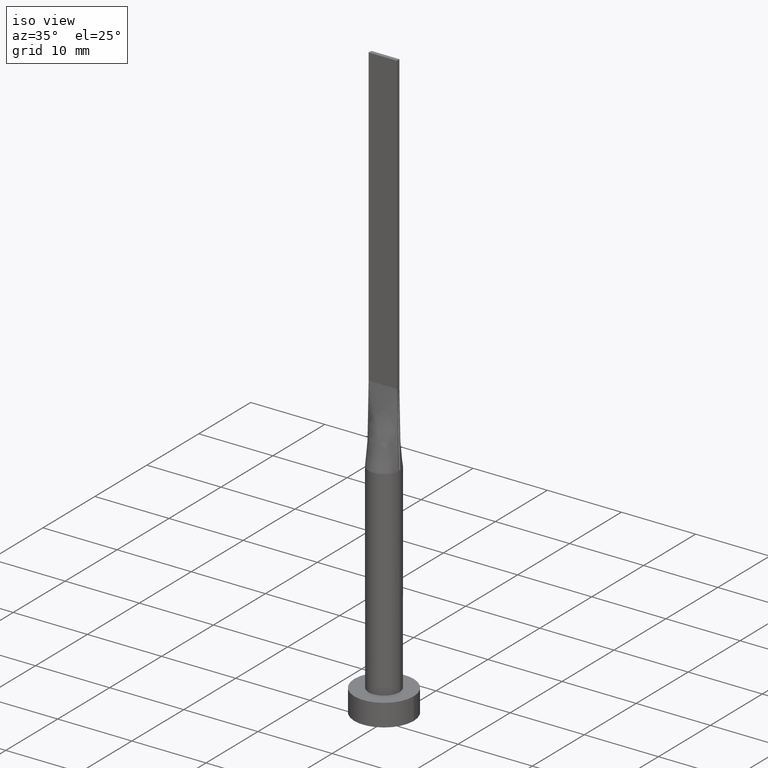
[diagram: clean part render]
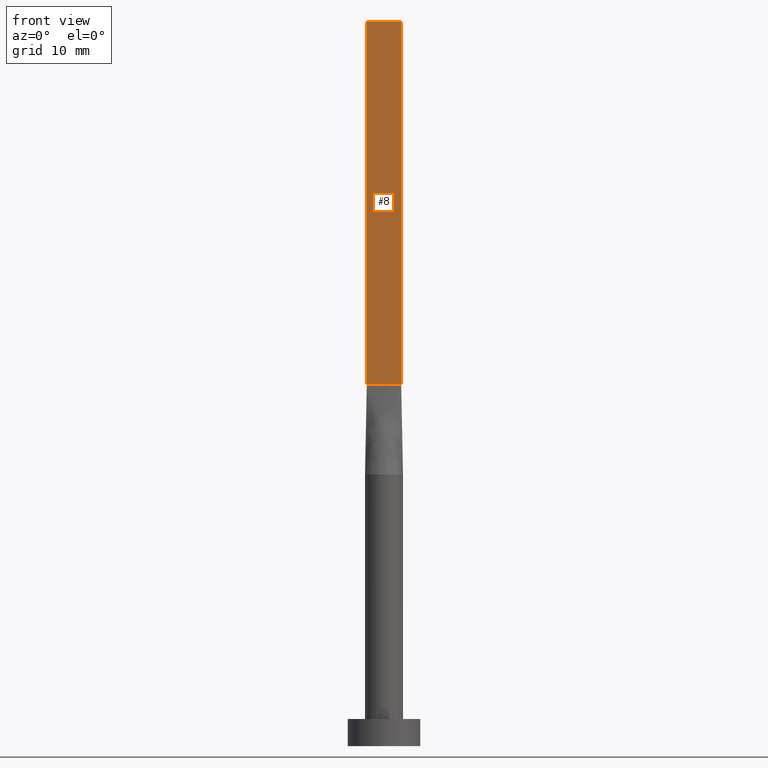
[diagram: tour spotlight — one face highlighted and labeled with its STEP entity id]
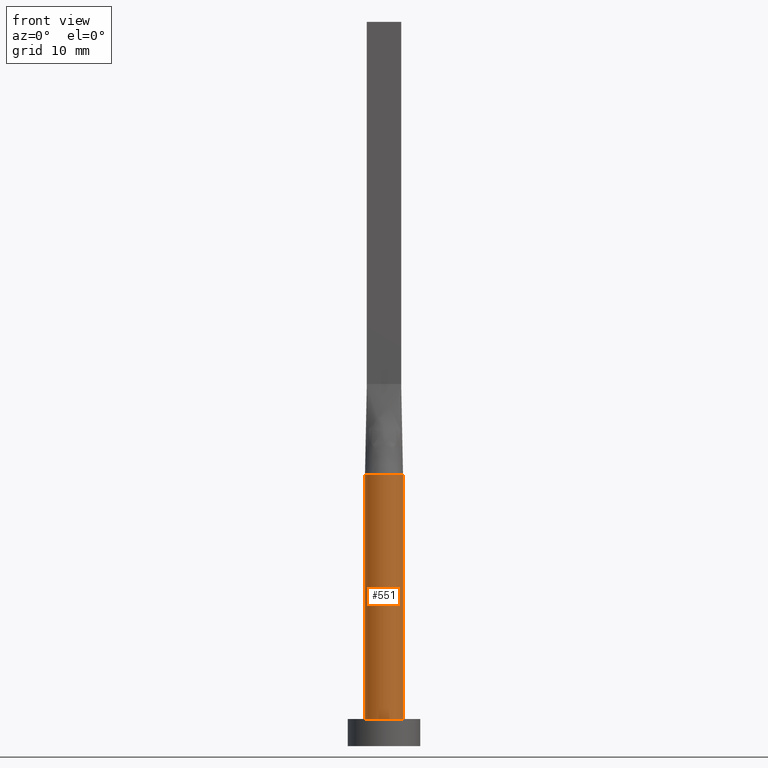
[diagram: tour spotlight — one face highlighted and labeled with its STEP entity id]
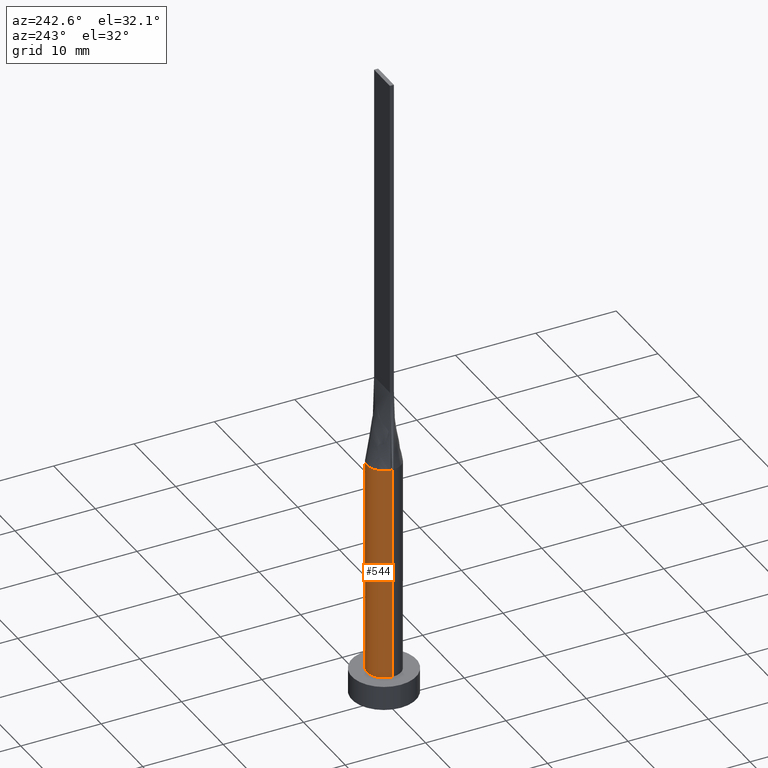
[diagram: tour spotlight — one face highlighted and labeled with its STEP entity id]
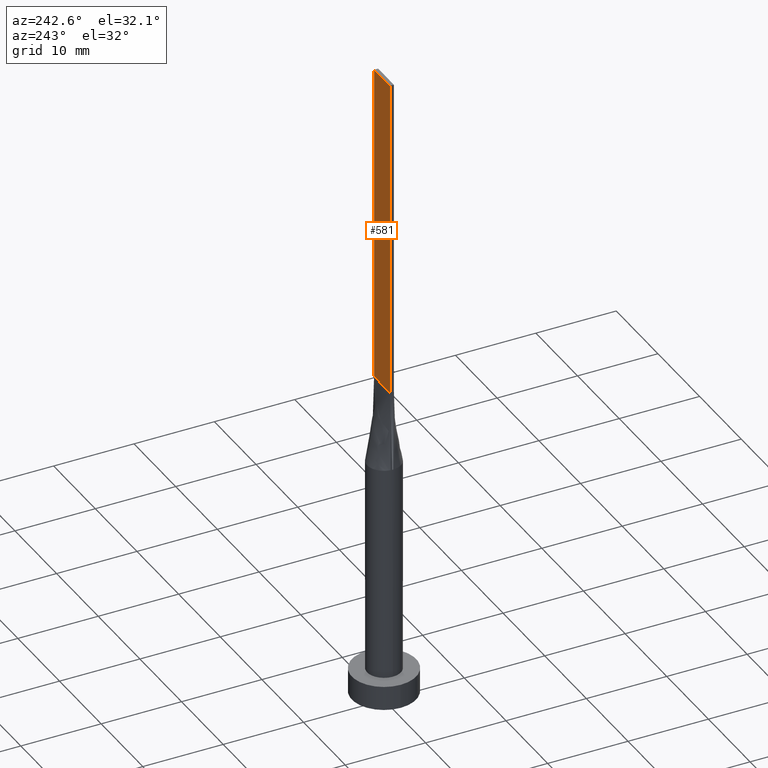
[diagram: tour spotlight — one face highlighted and labeled with its STEP entity id]
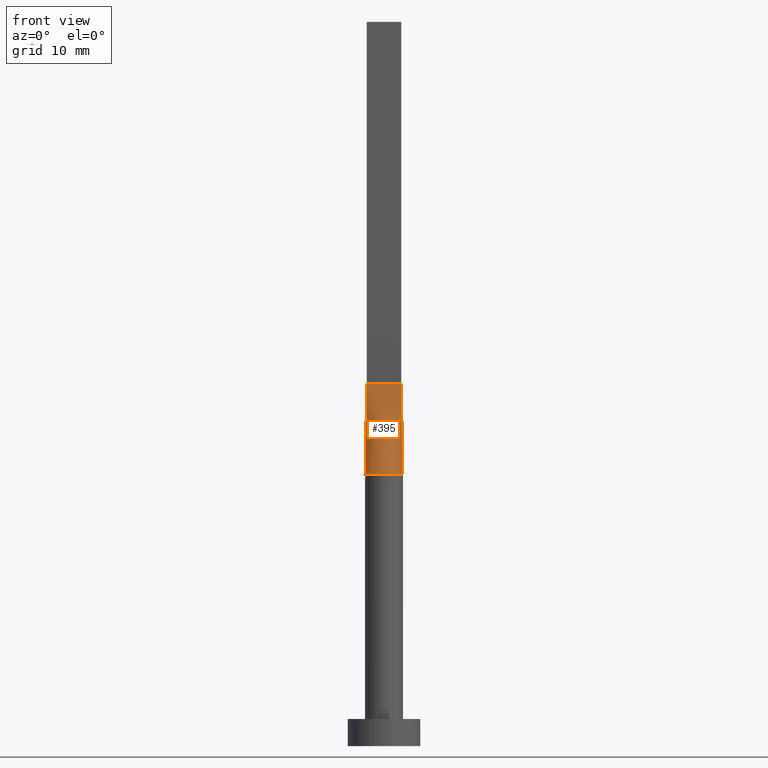
[diagram: tour spotlight — one face highlighted and labeled with its STEP entity id]
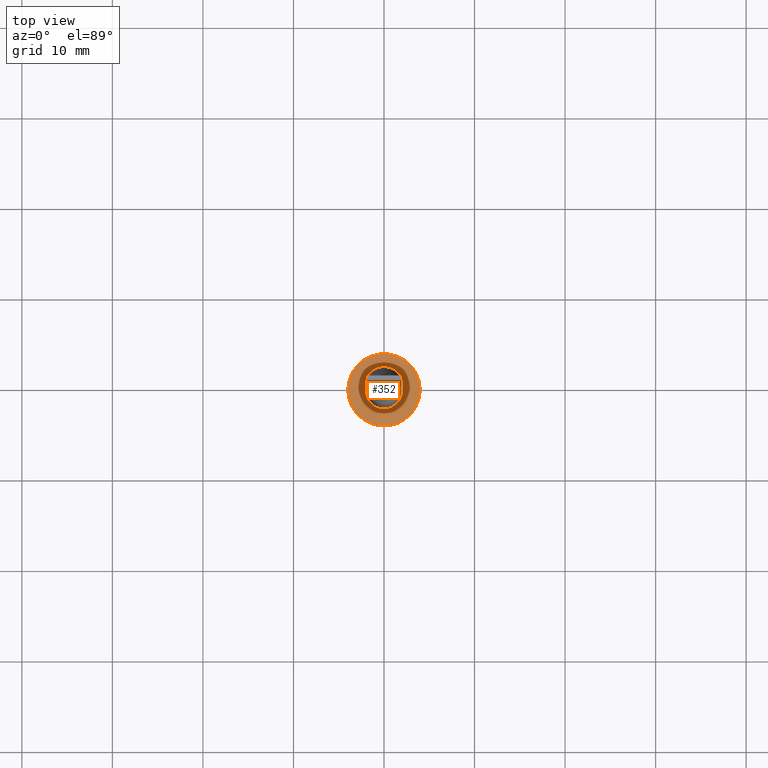
[diagram: tour spotlight — one face highlighted and labeled with its STEP entity id]
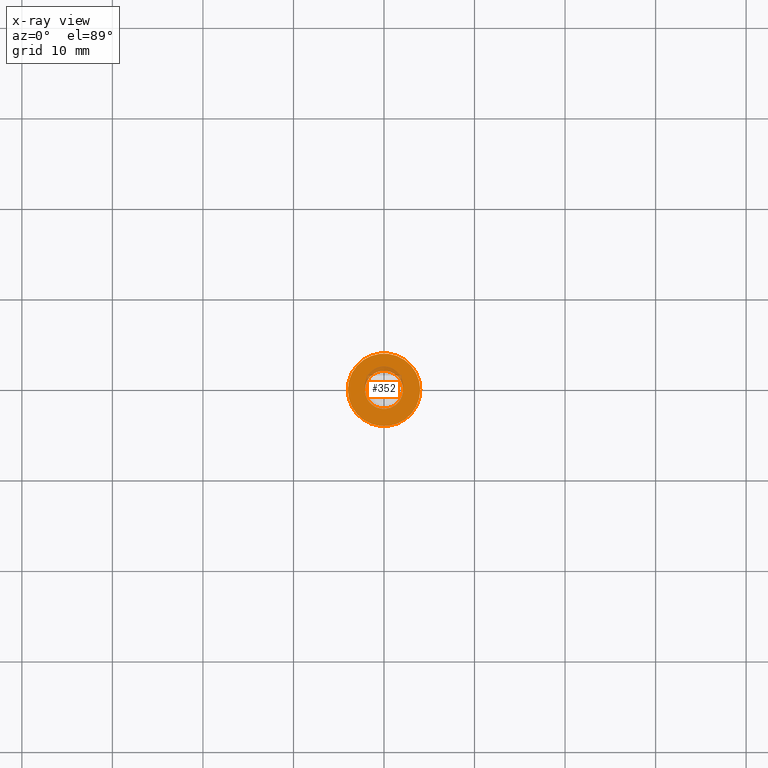
[diagram: x-ray of the same camera — body ghosted, this tour face saturated]
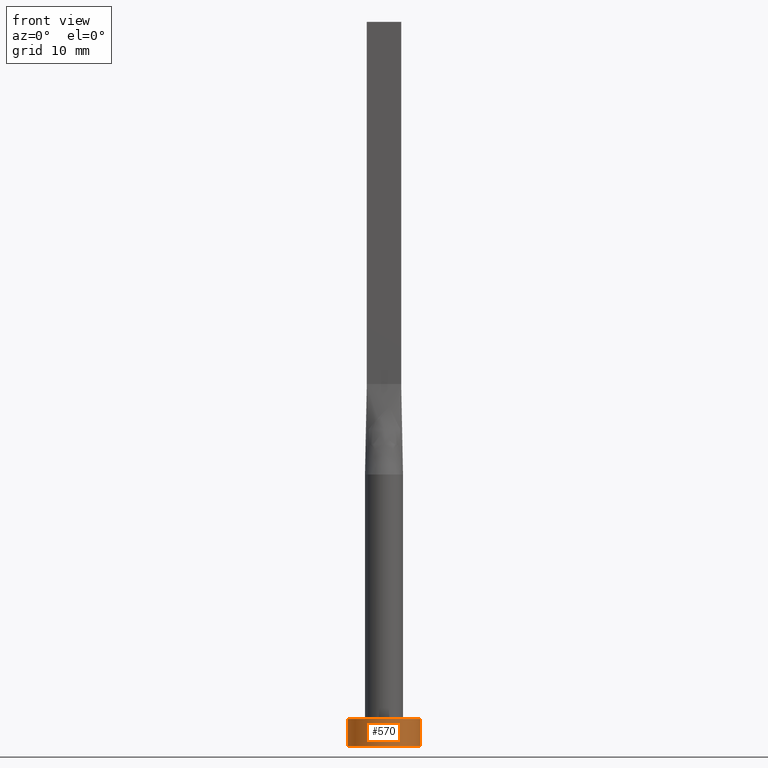
[diagram: tour spotlight — one face highlighted and labeled with its STEP entity id]
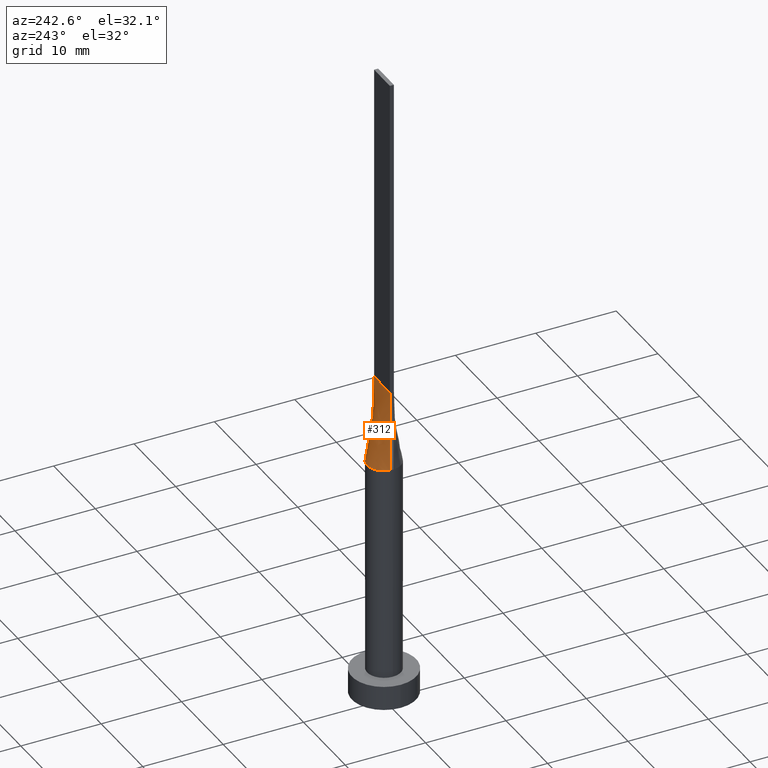
[diagram: tour spotlight — one face highlighted and labeled with its STEP entity id]
A machine part: a face-by-face anatomy tour. The part has 15 B-rep faces; the first image is the clean iso view, then the 8 largest visible faces are spotlighted one at a time (largest first), each with its STEP entity span.

Face 1 — front view, entity #8. In plain terms, the highlighted planar face has unit normal (0, 1, -0).
Definition (entity closure, byte-faithful):
#8 = ADVANCED_FACE ( 'NONE', ( #532 ), #138, .F. ) ;
#15 = ORIENTED_EDGE ( 'NONE', *, *, #535, .T. ) ;
#39 = LINE ( 'NONE', #225, #448 ) ;
#44 = LINE ( 'NONE', #447, #118 ) ;
#55 = VERTEX_POINT ( 'NONE', #391 ) ;
#85 = LINE ( 'NONE', #451, #376 ) ;
#86 = AXIS2_PLACEMENT_3D ( 'NONE', #441, #495, #93 ) ;
#93 = DIRECTION ( 'NONE',  ( -1.000000000000000000, 5.706327223607918787E-17, 0.000000000000000000 ) ) ;
#118 = VECTOR ( 'NONE', #130, 1000.000000000000000 ) ;
#130 = DIRECTION ( 'NONE',  ( 1.000000000000000000, -5.706327223607918787E-17, 0.000000000000000000 ) ) ;
#138 = PLANE ( 'NONE',  #86 ) ;
#173 = VERTEX_POINT ( 'NONE', #203 ) ;
#182 = DIRECTION ( 'NONE',  ( 1.000000000000000000, -5.706327223607920020E-17, 0.000000000000000000 ) ) ;
#185 = EDGE_CURVE ( 'NONE', #173, #524, #531, .T. ) ;
#188 = VECTOR ( 'NONE', #479, 1000.000000000000000 ) ;
#203 = CARTESIAN_POINT ( 'NONE',  ( 1.899999999999999023, -0.2499999999999997780, 80.00000000000000000 ) ) ;
#205 = VERTEX_POINT ( 'NONE', #297 ) ;
#224 = DIRECTION ( 'NONE',  ( -0.000000000000000000, -0.000000000000000000, -1.000000000000000000 ) ) ;
#225 = CARTESIAN_POINT ( 'NONE',  ( -1.899999999999999911, -0.2499999999999995837, 80.00000000000000000 ) ) ;
#257 = EDGE_LOOP ( 'NONE', ( #15, #526, #542, #317 ) ) ;
#297 = CARTESIAN_POINT ( 'NONE',  ( -1.899999999999999911, -0.2499999999999995837, 40.00000000000000000 ) ) ;
#303 = CARTESIAN_POINT ( 'NONE',  ( 1.899999999999999023, -0.2499999999999997780, 80.00000000000000000 ) ) ;
#317 = ORIENTED_EDGE ( 'NONE', *, *, #541, .T. ) ;
#376 = VECTOR ( 'NONE', #224, 1000.000000000000000 ) ;
#391 = CARTESIAN_POINT ( 'NONE',  ( -1.899999999999999911, -0.2499999999999995837, 80.00000000000000000 ) ) ;
#441 = CARTESIAN_POINT ( 'NONE',  ( -1.899999999999999911, -0.2499999999999995837, 80.00000000000000000 ) ) ;
#447 = CARTESIAN_POINT ( 'NONE',  ( -1.899999999999999911, -0.2499999999999995837, 40.00000000000000000 ) ) ;
#448 = VECTOR ( 'NONE', #182, 1000.000000000000000 ) ;
#451 = CARTESIAN_POINT ( 'NONE',  ( -1.899999999999999911, -0.2499999999999995837, 80.00000000000000000 ) ) ;
#479 = DIRECTION ( 'NONE',  ( -0.000000000000000000, -0.000000000000000000, -1.000000000000000000 ) ) ;
#495 = DIRECTION ( 'NONE',  ( 5.706327223607918787E-17, 1.000000000000000000, -0.000000000000000000 ) ) ;
#500 = EDGE_CURVE ( 'NONE', #55, #173, #39, .T. ) ;
#524 = VERTEX_POINT ( 'NONE', #568 ) ;
#526 = ORIENTED_EDGE ( 'NONE', *, *, #185, .F. ) ;
#531 = LINE ( 'NONE', #303, #188 ) ;
#532 = FACE_OUTER_BOUND ( 'NONE', #257, .T. ) ;
#535 = EDGE_CURVE ( 'NONE', #205, #524, #44, .T. ) ;
#541 = EDGE_CURVE ( 'NONE', #55, #205, #85, .T. ) ;
#542 = ORIENTED_EDGE ( 'NONE', *, *, #500, .F. ) ;
#568 = CARTESIAN_POINT ( 'NONE',  ( 1.899999999999999023, -0.2499999999999997780, 40.00000000000000000 ) ) ;

Face 2 — front view, entity #551. In plain terms, the highlighted cylindrical surface (edge-blend (fillet) strip) has radius 2.1 mm, axis along (-0, -0, -1).
Definition (entity closure, byte-faithful):
#2 = CIRCLE ( 'NONE', #364, 2.100000000000000089 ) ;
#4 = AXIS2_PLACEMENT_3D ( 'NONE', #385, #337, #521 ) ;
#29 = CARTESIAN_POINT ( 'NONE',  ( 2.082216499796571085, -0.2739752411676472654, 30.00000000000000000 ) ) ;
#31 = DIRECTION ( 'NONE',  ( -1.000000000000000000, 0.000000000000000000, 0.000000000000000000 ) ) ;
#48 = EDGE_CURVE ( 'NONE', #428, #403, #232, .T. ) ;
#52 = VERTEX_POINT ( 'NONE', #215 ) ;
#67 = AXIS2_PLACEMENT_3D ( 'NONE', #362, #533, #141 ) ;
#68 = ORIENTED_EDGE ( 'NONE', *, *, #200, .F. ) ;
#89 = LINE ( 'NONE', #279, #192 ) ;
#90 = DIRECTION ( 'NONE',  ( -0.000000000000000000, -0.000000000000000000, -1.000000000000000000 ) ) ;
#117 = DIRECTION ( 'NONE',  ( 1.000000000000000000, -2.131628207280300558E-14, 0.000000000000000000 ) ) ;
#137 = DIRECTION ( 'NONE',  ( 1.000000000000000000, 0.000000000000000000, 0.000000000000000000 ) ) ;
#141 = DIRECTION ( 'NONE',  ( 1.000000000000000000, 0.000000000000000000, 0.000000000000000000 ) ) ;
#150 = VERTEX_POINT ( 'NONE', #566 ) ;
#152 = VERTEX_POINT ( 'NONE', #210 ) ;
#180 = AXIS2_PLACEMENT_3D ( 'NONE', #314, #90, #31 ) ;
#192 = VECTOR ( 'NONE', #454, 1000.000000000000000 ) ;
#198 = CARTESIAN_POINT ( 'NONE',  ( -2.082216547150284924, -0.2739753355370637133, 30.00000000000000000 ) ) ;
#200 = EDGE_CURVE ( 'NONE', #150, #428, #498, .T. ) ;
#201 = ORIENTED_EDGE ( 'NONE', *, *, #48, .F. ) ;
#210 = CARTESIAN_POINT ( 'NONE',  ( 2.100000000000000089, 2.571758278209441957E-16, 3.000000000000000000 ) ) ;
#213 = CARTESIAN_POINT ( 'NONE',  ( 0.000000000000000000, 0.000000000000000000, 30.00000000000000000 ) ) ;
#215 = CARTESIAN_POINT ( 'NONE',  ( -2.100000000000000089, 0.000000000000000000, 3.000000000000000000 ) ) ;
#229 = CARTESIAN_POINT ( 'NONE',  ( 2.099961659741046649, 5.289748680732500402E-16, 30.00000000000000000 ) ) ;
#232 = CIRCLE ( 'NONE', #67, 2.100000000000000089 ) ;
#238 = EDGE_CURVE ( 'NONE', #150, #52, #89, .T. ) ;
#248 = CARTESIAN_POINT ( 'NONE',  ( 0.000000000000000000, 0.000000000000000000, 30.00000000000000000 ) ) ;
#250 = DIRECTION ( 'NONE',  ( 0.000000000000000000, 0.000000000000000000, 1.000000000000000000 ) ) ;
#279 = CARTESIAN_POINT ( 'NONE',  ( -2.100000000000000089, 0.000000000000000000, 30.00000000000000000 ) ) ;
#282 = DIRECTION ( 'NONE',  ( -0.000000000000000000, -0.000000000000000000, -1.000000000000000000 ) ) ;
#287 = VECTOR ( 'NONE', #282, 1000.000000000000000 ) ;
#314 = CARTESIAN_POINT ( 'NONE',  ( 0.000000000000000000, 0.000000000000000000, 30.00000000000000000 ) ) ;
#315 = ORIENTED_EDGE ( 'NONE', *, *, #496, .F. ) ;
#319 = ORIENTED_EDGE ( 'NONE', *, *, #238, .T. ) ;
#326 = EDGE_CURVE ( 'NONE', #52, #152, #519, .T. ) ;
#337 = DIRECTION ( 'NONE',  ( 0.000000000000000000, 0.000000000000000000, 1.000000000000000000 ) ) ;
#362 = CARTESIAN_POINT ( 'NONE',  ( 0.000000000000000000, 0.000000000000000000, 30.00000000000000000 ) ) ;
#364 = AXIS2_PLACEMENT_3D ( 'NONE', #248, #250, #117 ) ;
#380 = EDGE_LOOP ( 'NONE', ( #315, #512, #201, #68, #319, #508 ) ) ;
#382 = DIRECTION ( 'NONE',  ( 0.000000000000000000, 0.000000000000000000, 1.000000000000000000 ) ) ;
#385 = CARTESIAN_POINT ( 'NONE',  ( 0.000000000000000000, 0.000000000000000000, 3.000000000000000000 ) ) ;
#386 = EDGE_CURVE ( 'NONE', #403, #491, #2, .T. ) ;
#399 = LINE ( 'NONE', #530, #287 ) ;
#400 = FACE_OUTER_BOUND ( 'NONE', #380, .T. ) ;
#403 = VERTEX_POINT ( 'NONE', #29 ) ;
#428 = VERTEX_POINT ( 'NONE', #198 ) ;
#445 = CYLINDRICAL_SURFACE ( 'NONE', #180, 2.100000000000000089 ) ;
#454 = DIRECTION ( 'NONE',  ( -0.000000000000000000, -0.000000000000000000, -1.000000000000000000 ) ) ;
#457 = AXIS2_PLACEMENT_3D ( 'NONE', #213, #382, #137 ) ;
#491 = VERTEX_POINT ( 'NONE', #229 ) ;
#496 = EDGE_CURVE ( 'NONE', #491, #152, #399, .T. ) ;
#498 = CIRCLE ( 'NONE', #457, 2.100000000000000089 ) ;
#508 = ORIENTED_EDGE ( 'NONE', *, *, #326, .T. ) ;
#512 = ORIENTED_EDGE ( 'NONE', *, *, #386, .F. ) ;
#519 = CIRCLE ( 'NONE', #4, 2.100000000000000089 ) ;
#521 = DIRECTION ( 'NONE',  ( 1.000000000000000000, 0.000000000000000000, 0.000000000000000000 ) ) ;
#530 = CARTESIAN_POINT ( 'NONE',  ( 2.100000000000000089, 2.571758278209441957E-16, 30.00000000000000000 ) ) ;
#533 = DIRECTION ( 'NONE',  ( 0.000000000000000000, 0.000000000000000000, 1.000000000000000000 ) ) ;
#551 = ADVANCED_FACE ( 'NONE', ( #400 ), #445, .T. ) ;
#566 = CARTESIAN_POINT ( 'NONE',  ( -2.099961659741046649, -5.286755615166558459E-16, 30.00000000000000000 ) ) ;

Face 3 — auxiliary view, entity #544. In plain terms, the highlighted cylindrical surface (edge-blend (fillet) strip) has radius 2.1 mm, axis along (-0, -0, -1).
Definition (entity closure, byte-faithful):
#5 = AXIS2_PLACEMENT_3D ( 'NONE', #420, #562, #379 ) ;
#10 = VERTEX_POINT ( 'NONE', #456 ) ;
#12 = CARTESIAN_POINT ( 'NONE',  ( 1.370324685961209044, 1.611984358543462781, 30.00000000000000000 ) ) ;
#17 = CARTESIAN_POINT ( 'NONE',  ( -2.082200117151096208, 0.2739731464735293276, 30.00000000000000000 ) ) ;
#36 = VERTEX_POINT ( 'NONE', #74 ) ;
#45 = DIRECTION ( 'NONE',  ( 1.000000000000000000, 0.000000000000000000, 0.000000000000000000 ) ) ;
#50 = CIRCLE ( 'NONE', #144, 2.100000000000000089 ) ;
#52 = VERTEX_POINT ( 'NONE', #215 ) ;
#60 = CARTESIAN_POINT ( 'NONE',  ( 0.000000000000000000, 0.000000000000000000, 3.000000000000000000 ) ) ;
#70 = CARTESIAN_POINT ( 'NONE',  ( 0.6126365619873356261, 2.029890967560284754, 30.00000000000000000 ) ) ;
#72 = CARTESIAN_POINT ( 'NONE',  ( 2.059419575438525385, 0.4459762599261217764, 30.00000000000000000 ) ) ;
#73 = EDGE_CURVE ( 'NONE', #10, #150, #538, .T. ) ;
#74 = CARTESIAN_POINT ( 'NONE',  ( 2.082200219287980492, 0.2739732417105839035, 30.00000000000000000 ) ) ;
#81 = EDGE_CURVE ( 'NONE', #491, #36, #120, .T. ) ;
#82 = CARTESIAN_POINT ( 'NONE',  ( 0.000000000000000000, 0.000000000000000000, 30.00000000000000000 ) ) ;
#84 = ORIENTED_EDGE ( 'NONE', *, *, #126, .T. ) ;
#89 = LINE ( 'NONE', #279, #192 ) ;
#111 = CARTESIAN_POINT ( 'NONE',  ( -1.370324685961209266, 1.611984358543462559, 30.00000000000000000 ) ) ;
#116 = CARTESIAN_POINT ( 'NONE',  ( -2.013179673790353341, 0.6348343983169374427, 29.99999999999998934 ) ) ;
#120 = CIRCLE ( 'NONE', #5, 2.100000000000000089 ) ;
#125 = DIRECTION ( 'NONE',  ( 0.000000000000000000, 0.000000000000000000, 1.000000000000000000 ) ) ;
#126 = EDGE_CURVE ( 'NONE', #152, #52, #50, .T. ) ;
#131 = CYLINDRICAL_SURFACE ( 'NONE', #329, 2.100000000000000089 ) ;
#144 = AXIS2_PLACEMENT_3D ( 'NONE', #60, #125, #218 ) ;
#150 = VERTEX_POINT ( 'NONE', #566 ) ;
#152 = VERTEX_POINT ( 'NONE', #210 ) ;
#171 = EDGE_CURVE ( 'NONE', #36, #10, #298, .T. ) ;
#177 = ORIENTED_EDGE ( 'NONE', *, *, #496, .T. ) ;
#179 = ORIENTED_EDGE ( 'NONE', *, *, #81, .F. ) ;
#192 = VECTOR ( 'NONE', #454, 1000.000000000000000 ) ;
#210 = CARTESIAN_POINT ( 'NONE',  ( 2.100000000000000089, 2.571758278209441957E-16, 3.000000000000000000 ) ) ;
#215 = CARTESIAN_POINT ( 'NONE',  ( -2.100000000000000089, 0.000000000000000000, 3.000000000000000000 ) ) ;
#218 = DIRECTION ( 'NONE',  ( 1.000000000000000000, 0.000000000000000000, 0.000000000000000000 ) ) ;
#228 = ORIENTED_EDGE ( 'NONE', *, *, #73, .F. ) ;
#229 = CARTESIAN_POINT ( 'NONE',  ( 2.099961659741046649, 5.289748680732500402E-16, 30.00000000000000000 ) ) ;
#238 = EDGE_CURVE ( 'NONE', #150, #52, #89, .T. ) ;
#249 = CARTESIAN_POINT ( 'NONE',  ( -1.719140910005030554, 1.233222546295088762, 30.00000000000000000 ) ) ;
#255 = CARTESIAN_POINT ( 'NONE',  ( -0.6126365619873356261, 2.029890967560284754, 30.00000000000000000 ) ) ;
#259 = CARTESIAN_POINT ( 'NONE',  ( 0.3069641454662044300, 2.100000000000000089, 30.00000000000000000 ) ) ;
#261 = CARTESIAN_POINT ( 'NONE',  ( 2.013179673790353341, 0.6348343983169372207, 29.99999999999999289 ) ) ;
#267 = DIRECTION ( 'NONE',  ( -1.000000000000000000, 0.000000000000000000, 0.000000000000000000 ) ) ;
#273 = DIRECTION ( 'NONE',  ( -0.000000000000000000, -0.000000000000000000, -1.000000000000000000 ) ) ;
#279 = CARTESIAN_POINT ( 'NONE',  ( -2.100000000000000089, 0.000000000000000000, 30.00000000000000000 ) ) ;
#282 = DIRECTION ( 'NONE',  ( -0.000000000000000000, -0.000000000000000000, -1.000000000000000000 ) ) ;
#287 = VECTOR ( 'NONE', #282, 1000.000000000000000 ) ;
#289 = ORIENTED_EDGE ( 'NONE', *, *, #171, .F. ) ;
#298 = B_SPLINE_CURVE_WITH_KNOTS ( 'NONE', 3,
 ( #344, #72, #261, #458, #419, #12, #561, #70, #259, #437, #255, #517, #111, #249, #358, #116, #423, #17 ),
 .UNSPECIFIED., .F., .F.,
 ( 4, 2, 2, 2, 2, 2, 2, 2, 4 ),
 ( 0.000000000000000000, 0.1250000000000000000, 0.2500000000000000000, 0.3750000000000000000, 0.5000000000000000000, 0.6250000000000000000, 0.7500000000000000000, 0.8750000000000000000, 1.000000000000000000 ),
 .UNSPECIFIED. ) ;
#327 = EDGE_LOOP ( 'NONE', ( #179, #177, #84, #407, #228, #289 ) ) ;
#329 = AXIS2_PLACEMENT_3D ( 'NONE', #82, #273, #267 ) ;
#344 = CARTESIAN_POINT ( 'NONE',  ( 2.082200219287980492, 0.2739732417105839035, 30.00000000000000000 ) ) ;
#358 = CARTESIAN_POINT ( 'NONE',  ( -1.843490440271193798, 1.028323931880310349, 29.99999999999998934 ) ) ;
#368 = AXIS2_PLACEMENT_3D ( 'NONE', #564, #398, #45 ) ;
#379 = DIRECTION ( 'NONE',  ( 1.000000000000000000, 0.000000000000000000, 0.000000000000000000 ) ) ;
#398 = DIRECTION ( 'NONE',  ( 0.000000000000000000, 0.000000000000000000, 1.000000000000000000 ) ) ;
#399 = LINE ( 'NONE', #530, #287 ) ;
#402 = FACE_OUTER_BOUND ( 'NONE', #327, .T. ) ;
#407 = ORIENTED_EDGE ( 'NONE', *, *, #238, .F. ) ;
#419 = CARTESIAN_POINT ( 'NONE',  ( 1.719140910005030110, 1.233222546295088762, 30.00000000000000355 ) ) ;
#420 = CARTESIAN_POINT ( 'NONE',  ( 0.000000000000000000, 0.000000000000000000, 30.00000000000000000 ) ) ;
#423 = CARTESIAN_POINT ( 'NONE',  ( -2.059419575438525385, 0.4459762599261216653, 30.00000000000000355 ) ) ;
#437 = CARTESIAN_POINT ( 'NONE',  ( -0.3069641454662043190, 2.100000000000000533, 30.00000000000000000 ) ) ;
#454 = DIRECTION ( 'NONE',  ( -0.000000000000000000, -0.000000000000000000, -1.000000000000000000 ) ) ;
#456 = CARTESIAN_POINT ( 'NONE',  ( -2.082200117151096208, 0.2739731464735293276, 30.00000000000000000 ) ) ;
#458 = CARTESIAN_POINT ( 'NONE',  ( 1.843490440271194020, 1.028323931880309905, 29.99999999999998579 ) ) ;
#491 = VERTEX_POINT ( 'NONE', #229 ) ;
#496 = EDGE_CURVE ( 'NONE', #491, #152, #399, .T. ) ;
#517 = CARTESIAN_POINT ( 'NONE',  ( -1.144666002056102361, 1.784802689656027619, 30.00000000000000000 ) ) ;
#530 = CARTESIAN_POINT ( 'NONE',  ( 2.100000000000000089, 2.571758278209441957E-16, 30.00000000000000000 ) ) ;
#538 = CIRCLE ( 'NONE', #368, 2.100000000000000089 ) ;
#544 = ADVANCED_FACE ( 'NONE', ( #402 ), #131, .T. ) ;
#561 = CARTESIAN_POINT ( 'NONE',  ( 1.144666002056102583, 1.784802689656027397, 30.00000000000000000 ) ) ;
#562 = DIRECTION ( 'NONE',  ( 0.000000000000000000, 0.000000000000000000, 1.000000000000000000 ) ) ;
#564 = CARTESIAN_POINT ( 'NONE',  ( 0.000000000000000000, 0.000000000000000000, 30.00000000000000000 ) ) ;
#566 = CARTESIAN_POINT ( 'NONE',  ( -2.099961659741046649, -5.286755615166558459E-16, 30.00000000000000000 ) ) ;

Face 4 — auxiliary view, entity #581. In plain terms, the highlighted planar face has unit normal (0, -1, 0).
Definition (entity closure, byte-faithful):
#61 = CARTESIAN_POINT ( 'NONE',  ( 1.899999999999999911, 0.2500000000000002220, 80.00000000000000000 ) ) ;
#94 = CARTESIAN_POINT ( 'NONE',  ( -1.899999999999999911, 0.2500000000000002220, 40.00000000000000000 ) ) ;
#104 = VECTOR ( 'NONE', #572, 1000.000000000000000 ) ;
#107 = CARTESIAN_POINT ( 'NONE',  ( 1.899999999999999911, 0.2500000000000002220, 80.00000000000000000 ) ) ;
#113 = PLANE ( 'NONE',  #313 ) ;
#136 = LINE ( 'NONE', #178, #104 ) ;
#170 = VECTOR ( 'NONE', #404, 1000.000000000000000 ) ;
#178 = CARTESIAN_POINT ( 'NONE',  ( 1.899999999999999911, 0.2500000000000002220, 80.00000000000000000 ) ) ;
#199 = FACE_OUTER_BOUND ( 'NONE', #309, .T. ) ;
#219 = CARTESIAN_POINT ( 'NONE',  ( 1.899999999999999911, 0.2500000000000002220, 80.00000000000000000 ) ) ;
#256 = DIRECTION ( 'NONE',  ( -0.000000000000000000, -0.000000000000000000, -1.000000000000000000 ) ) ;
#270 = CARTESIAN_POINT ( 'NONE',  ( -1.899999999999999911, 0.2500000000000002220, 80.00000000000000000 ) ) ;
#288 = EDGE_CURVE ( 'NONE', #567, #446, #509, .T. ) ;
#291 = ORIENTED_EDGE ( 'NONE', *, *, #472, .T. ) ;
#305 = DIRECTION ( 'NONE',  ( 0.000000000000000000, -0.000000000000000000, -1.000000000000000000 ) ) ;
#309 = EDGE_LOOP ( 'NONE', ( #291, #574, #452, #486 ) ) ;
#311 = CARTESIAN_POINT ( 'NONE',  ( 1.899999999999999911, 0.2500000000000002220, 40.00000000000000000 ) ) ;
#313 = AXIS2_PLACEMENT_3D ( 'NONE', #61, #426, #305 ) ;
#363 = LINE ( 'NONE', #94, #170 ) ;
#390 = EDGE_CURVE ( 'NONE', #450, #504, #557, .T. ) ;
#392 = VECTOR ( 'NONE', #473, 1000.000000000000000 ) ;
#404 = DIRECTION ( 'NONE',  ( -1.000000000000000000, -0.000000000000000000, -0.000000000000000000 ) ) ;
#426 = DIRECTION ( 'NONE',  ( 0.000000000000000000, -1.000000000000000000, 0.000000000000000000 ) ) ;
#436 = EDGE_CURVE ( 'NONE', #567, #450, #136, .T. ) ;
#446 = VERTEX_POINT ( 'NONE', #311 ) ;
#450 = VERTEX_POINT ( 'NONE', #270 ) ;
#452 = ORIENTED_EDGE ( 'NONE', *, *, #436, .F. ) ;
#472 = EDGE_CURVE ( 'NONE', #446, #504, #363, .T. ) ;
#473 = DIRECTION ( 'NONE',  ( -0.000000000000000000, -0.000000000000000000, -1.000000000000000000 ) ) ;
#486 = ORIENTED_EDGE ( 'NONE', *, *, #288, .T. ) ;
#490 = CARTESIAN_POINT ( 'NONE',  ( -1.899999999999999911, 0.2500000000000002220, 40.00000000000000000 ) ) ;
#504 = VERTEX_POINT ( 'NONE', #490 ) ;
#509 = LINE ( 'NONE', #107, #392 ) ;
#522 = CARTESIAN_POINT ( 'NONE',  ( -1.899999999999999911, 0.2500000000000002220, 80.00000000000000000 ) ) ;
#536 = VECTOR ( 'NONE', #256, 1000.000000000000000 ) ;
#557 = LINE ( 'NONE', #522, #536 ) ;
#567 = VERTEX_POINT ( 'NONE', #219 ) ;
#572 = DIRECTION ( 'NONE',  ( -1.000000000000000000, 0.000000000000000000, 0.000000000000000000 ) ) ;
#574 = ORIENTED_EDGE ( 'NONE', *, *, #390, .F. ) ;
#581 = ADVANCED_FACE ( 'NONE', ( #199 ), #113, .F. ) ;

Face 5 — front view, entity #395. In plain terms, the highlighted face is a freeform B-spline surface patch.
Definition (entity closure, byte-faithful):
#11 = DIRECTION ( 'NONE',  ( -0.01820233363815268804, -0.002395043899756892601, -0.9998314552037476099 ) ) ;
#18 = CARTESIAN_POINT ( 'NONE',  ( 1.144666002056101028, -1.784802689656028507, 30.00000000000001066 ) ) ;
#23 = CARTESIAN_POINT ( 'NONE',  ( -2.059419575438525385, -0.4459762599261209992, 30.00000000000000355 ) ) ;
#26 = CARTESIAN_POINT ( 'NONE',  ( 0.3069641454662038194, -2.100000000000000089, 30.00000000000001066 ) ) ;
#29 = CARTESIAN_POINT ( 'NONE',  ( 2.082216499796571085, -0.2739752411676472654, 30.00000000000000000 ) ) ;
#32 = VECTOR ( 'NONE', #11, 1000.000000000000114 ) ;
#41 = VECTOR ( 'NONE', #357, 1000.000000000000114 ) ;
#44 = LINE ( 'NONE', #447, #118 ) ;
#48 = EDGE_CURVE ( 'NONE', #428, #403, #232, .T. ) ;
#59 = CARTESIAN_POINT ( 'NONE',  ( -1.144666002056103249, -1.784802689656026953, 30.00000000000000355 ) ) ;
#64 = CARTESIAN_POINT ( 'NONE',  ( 0.1583333333333343529, -0.2499999999999996669, 39.99999999999999289 ) ) ;
#67 = AXIS2_PLACEMENT_3D ( 'NONE', #362, #533, #141 ) ;
#71 = CARTESIAN_POINT ( 'NONE',  ( -0.6126365619873365143, -2.029890967560283865, 29.99999999999999645 ) ) ;
#76 = CARTESIAN_POINT ( 'NONE',  ( 1.741666666666666030, -0.2499999999999997780, 39.99999999999999289 ) ) ;
#80 = LINE ( 'NONE', #139, #41 ) ;
#87 = ORIENTED_EDGE ( 'NONE', *, *, #442, .T. ) ;
#106 = CARTESIAN_POINT ( 'NONE',  ( -1.991027010319671220, -0.2619772381999561084, 35.00000000000000000 ) ) ;
#108 = CARTESIAN_POINT ( 'NONE',  ( 0.6333333333333343029, -0.2499999999999996669, 39.99999999999999289 ) ) ;
#112 = CARTESIAN_POINT ( 'NONE',  ( -0.3069641454662052071, -2.100000000000000089, 30.00000000000000355 ) ) ;
#118 = VECTOR ( 'NONE', #130, 1000.000000000000000 ) ;
#124 = CARTESIAN_POINT ( 'NONE',  ( -1.583333333333332815, -0.2499999999999995837, 39.99999999999999289 ) ) ;
#130 = DIRECTION ( 'NONE',  ( 1.000000000000000000, -5.706327223607918787E-17, 0.000000000000000000 ) ) ;
#139 = CARTESIAN_POINT ( 'NONE',  ( 1.991027010319670776, -0.2619772381999571076, 35.00000000000000000 ) ) ;
#141 = DIRECTION ( 'NONE',  ( 1.000000000000000000, 0.000000000000000000, 0.000000000000000000 ) ) ;
#160 = CARTESIAN_POINT ( 'NONE',  ( 2.059419575438525385, -0.4459762599261227201, 30.00000000000000355 ) ) ;
#164 = CARTESIAN_POINT ( 'NONE',  ( -0.1583333333333323822, -0.2499999999999996392, 40.00000000000000000 ) ) ;
#169 = CARTESIAN_POINT ( 'NONE',  ( 2.013179673790352897, -0.6348343983169382199, 30.00000000000000355 ) ) ;
#189 = B_SPLINE_SURFACE_WITH_KNOTS ( 'NONE', 3, 1, ( 
 ( #343, #346 ),
 ( #23, #209 ),
 ( #424, #124 ),
 ( #375, #265 ),
 ( #260, #378 ),
 ( #383, #304 ),
 ( #59, #480 ),
 ( #71, #438 ),
 ( #112, #164 ),
 ( #26, #64 ),
 ( #510, #294 ),
 ( #18, #108 ),
 ( #204, #214 ),
 ( #388, #216 ),
 ( #553, #334 ),
 ( #169, #308 ),
 ( #160, #76 ),
 ( #484, #443 ) ),
 .UNSPECIFIED., .F., .F., .F.,
 ( 4, 2, 2, 2, 2, 2, 2, 2, 4 ),
 ( 2, 2 ),
 ( 0.000000000000000000, 0.1249999999999999722, 0.2500000000000000000, 0.3750000000000000000, 0.5000000000000000000, 0.6250000000000001110, 0.7500000000000000000, 0.8750000000000000000, 1.000000000000000000 ),
 ( 0.000000000000000000, 1.000000000000000000 ),
 .UNSPECIFIED. ) ;
#198 = CARTESIAN_POINT ( 'NONE',  ( -2.082216547150284924, -0.2739753355370637133, 30.00000000000000000 ) ) ;
#204 = CARTESIAN_POINT ( 'NONE',  ( 1.370324685961208599, -1.611984358543463447, 30.00000000000000000 ) ) ;
#205 = VERTEX_POINT ( 'NONE', #297 ) ;
#209 = CARTESIAN_POINT ( 'NONE',  ( -1.741666666666666474, -0.2499999999999995837, 39.99999999999999289 ) ) ;
#214 = CARTESIAN_POINT ( 'NONE',  ( 0.7916666666666672958, -0.2499999999999996669, 39.99999999999999289 ) ) ;
#216 = CARTESIAN_POINT ( 'NONE',  ( 1.108333333333333615, -0.2499999999999996669, 39.99999999999999289 ) ) ;
#223 = ORIENTED_EDGE ( 'NONE', *, *, #366, .T. ) ;
#232 = CIRCLE ( 'NONE', #67, 2.100000000000000089 ) ;
#247 = EDGE_LOOP ( 'NONE', ( #470, #87, #546, #223 ) ) ;
#260 = CARTESIAN_POINT ( 'NONE',  ( -1.719140910005030998, -1.233222546295087652, 29.99999999999999289 ) ) ;
#265 = CARTESIAN_POINT ( 'NONE',  ( -1.266666666666665941, -0.2499999999999995837, 39.99999999999999289 ) ) ;
#294 = CARTESIAN_POINT ( 'NONE',  ( 0.3166666666666677621, -0.2499999999999996669, 39.99999999999999289 ) ) ;
#297 = CARTESIAN_POINT ( 'NONE',  ( -1.899999999999999911, -0.2499999999999995837, 40.00000000000000000 ) ) ;
#304 = CARTESIAN_POINT ( 'NONE',  ( -0.7916666666666655194, -0.2499999999999995837, 39.99999999999999289 ) ) ;
#307 = LINE ( 'NONE', #106, #32 ) ;
#308 = CARTESIAN_POINT ( 'NONE',  ( 1.583333333333332815, -0.2499999999999997224, 39.99999999999999289 ) ) ;
#334 = CARTESIAN_POINT ( 'NONE',  ( 1.266666666666666829, -0.2499999999999996669, 39.99999999999999289 ) ) ;
#343 = CARTESIAN_POINT ( 'NONE',  ( -2.082054020639342529, -0.2739544763999126609, 30.00000000000000000 ) ) ;
#346 = CARTESIAN_POINT ( 'NONE',  ( -1.899999999999999911, -0.2499999999999995837, 40.00000000000000000 ) ) ;
#357 = DIRECTION ( 'NONE',  ( -0.01820233363815273661, 0.002395043899757038752, 0.9998314552037476099 ) ) ;
#362 = CARTESIAN_POINT ( 'NONE',  ( 0.000000000000000000, 0.000000000000000000, 30.00000000000000000 ) ) ;
#366 = EDGE_CURVE ( 'NONE', #205, #428, #307, .T. ) ;
#375 = CARTESIAN_POINT ( 'NONE',  ( -1.843490440271193354, -1.028323931880309461, 30.00000000000000000 ) ) ;
#378 = CARTESIAN_POINT ( 'NONE',  ( -1.108333333333332282, -0.2499999999999995837, 39.99999999999999289 ) ) ;
#383 = CARTESIAN_POINT ( 'NONE',  ( -1.370324685961210820, -1.611984358543462337, 29.99999999999999645 ) ) ;
#388 = CARTESIAN_POINT ( 'NONE',  ( 1.719140910005029443, -1.233222546295088984, 30.00000000000000000 ) ) ;
#395 = ADVANCED_FACE ( 'NONE', ( #431 ), #189, .T. ) ;
#403 = VERTEX_POINT ( 'NONE', #29 ) ;
#424 = CARTESIAN_POINT ( 'NONE',  ( -2.013179673790353341, -0.6348343983169372207, 30.00000000000000355 ) ) ;
#428 = VERTEX_POINT ( 'NONE', #198 ) ;
#431 = FACE_OUTER_BOUND ( 'NONE', #247, .T. ) ;
#438 = CARTESIAN_POINT ( 'NONE',  ( -0.3166666666666655972, -0.2499999999999995837, 39.99999999999999289 ) ) ;
#442 = EDGE_CURVE ( 'NONE', #403, #524, #80, .T. ) ;
#443 = CARTESIAN_POINT ( 'NONE',  ( 1.899999999999999023, -0.2499999999999997780, 40.00000000000000000 ) ) ;
#447 = CARTESIAN_POINT ( 'NONE',  ( -1.899999999999999911, -0.2499999999999995837, 40.00000000000000000 ) ) ;
#470 = ORIENTED_EDGE ( 'NONE', *, *, #48, .T. ) ;
#480 = CARTESIAN_POINT ( 'NONE',  ( -0.6333333333333321935, -0.2499999999999995837, 39.99999999999999289 ) ) ;
#484 = CARTESIAN_POINT ( 'NONE',  ( 2.082054020639342085, -0.2739544763999143262, 30.00000000000000000 ) ) ;
#510 = CARTESIAN_POINT ( 'NONE',  ( 0.6126365619873340718, -2.029890967560283865, 29.99999999999999645 ) ) ;
#524 = VERTEX_POINT ( 'NONE', #568 ) ;
#533 = DIRECTION ( 'NONE',  ( 0.000000000000000000, 0.000000000000000000, 1.000000000000000000 ) ) ;
#535 = EDGE_CURVE ( 'NONE', #205, #524, #44, .T. ) ;
#546 = ORIENTED_EDGE ( 'NONE', *, *, #535, .F. ) ;
#553 = CARTESIAN_POINT ( 'NONE',  ( 1.843490440271193354, -1.028323931880311459, 30.00000000000000711 ) ) ;
#568 = CARTESIAN_POINT ( 'NONE',  ( 1.899999999999999023, -0.2499999999999997780, 40.00000000000000000 ) ) ;

Face 6 — top view, entity #352. An x-ray twin of the same camera follows (body ghosted, this face saturated) — the face is partly hidden behind the body. In plain terms, the highlighted planar face has unit normal (0, 0, 1).
Definition (entity closure, byte-faithful):
#4 = AXIS2_PLACEMENT_3D ( 'NONE', #385, #337, #521 ) ;
#37 = DIRECTION ( 'NONE',  ( 0.000000000000000000, 0.000000000000000000, 1.000000000000000000 ) ) ;
#50 = CIRCLE ( 'NONE', #144, 2.100000000000000089 ) ;
#52 = VERTEX_POINT ( 'NONE', #215 ) ;
#60 = CARTESIAN_POINT ( 'NONE',  ( 0.000000000000000000, 0.000000000000000000, 3.000000000000000000 ) ) ;
#69 = FACE_BOUND ( 'NONE', #196, .T. ) ;
#75 = PLANE ( 'NONE',  #345 ) ;
#123 = DIRECTION ( 'NONE',  ( 0.000000000000000000, 0.000000000000000000, 1.000000000000000000 ) ) ;
#125 = DIRECTION ( 'NONE',  ( 0.000000000000000000, 0.000000000000000000, 1.000000000000000000 ) ) ;
#126 = EDGE_CURVE ( 'NONE', #152, #52, #50, .T. ) ;
#140 = DIRECTION ( 'NONE',  ( 0.000000000000000000, 0.000000000000000000, 1.000000000000000000 ) ) ;
#144 = AXIS2_PLACEMENT_3D ( 'NONE', #60, #125, #218 ) ;
#152 = VERTEX_POINT ( 'NONE', #210 ) ;
#167 = CARTESIAN_POINT ( 'NONE',  ( 0.000000000000000000, 0.000000000000000000, 3.000000000000000000 ) ) ;
#195 = VERTEX_POINT ( 'NONE', #556 ) ;
#196 = EDGE_LOOP ( 'NONE', ( #300, #371 ) ) ;
#208 = CARTESIAN_POINT ( 'NONE',  ( 0.000000000000000000, 0.000000000000000000, 3.000000000000000000 ) ) ;
#210 = CARTESIAN_POINT ( 'NONE',  ( 2.100000000000000089, 2.571758278209441957E-16, 3.000000000000000000 ) ) ;
#215 = CARTESIAN_POINT ( 'NONE',  ( -2.100000000000000089, 0.000000000000000000, 3.000000000000000000 ) ) ;
#218 = DIRECTION ( 'NONE',  ( 1.000000000000000000, 0.000000000000000000, 0.000000000000000000 ) ) ;
#221 = CARTESIAN_POINT ( 'NONE',  ( 0.000000000000000000, 0.000000000000000000, 3.000000000000000000 ) ) ;
#231 = AXIS2_PLACEMENT_3D ( 'NONE', #221, #37, #575 ) ;
#277 = EDGE_CURVE ( 'NONE', #336, #195, #281, .T. ) ;
#281 = CIRCLE ( 'NONE', #367, 4.000000000000000000 ) ;
#300 = ORIENTED_EDGE ( 'NONE', *, *, #326, .F. ) ;
#318 = DIRECTION ( 'NONE',  ( 1.000000000000000000, 0.000000000000000000, 0.000000000000000000 ) ) ;
#321 = CIRCLE ( 'NONE', #231, 4.000000000000000000 ) ;
#326 = EDGE_CURVE ( 'NONE', #52, #152, #519, .T. ) ;
#332 = DIRECTION ( 'NONE',  ( 1.000000000000000000, 0.000000000000000000, -0.000000000000000000 ) ) ;
#336 = VERTEX_POINT ( 'NONE', #475 ) ;
#337 = DIRECTION ( 'NONE',  ( 0.000000000000000000, 0.000000000000000000, 1.000000000000000000 ) ) ;
#345 = AXIS2_PLACEMENT_3D ( 'NONE', #167, #123, #332 ) ;
#352 = ADVANCED_FACE ( 'NONE', ( #69, #483 ), #75, .T. ) ;
#367 = AXIS2_PLACEMENT_3D ( 'NONE', #208, #140, #318 ) ;
#371 = ORIENTED_EDGE ( 'NONE', *, *, #126, .F. ) ;
#385 = CARTESIAN_POINT ( 'NONE',  ( 0.000000000000000000, 0.000000000000000000, 3.000000000000000000 ) ) ;
#417 = ORIENTED_EDGE ( 'NONE', *, *, #461, .T. ) ;
#461 = EDGE_CURVE ( 'NONE', #195, #336, #321, .T. ) ;
#475 = CARTESIAN_POINT ( 'NONE',  ( -4.000000000000000000, 0.000000000000000000, 3.000000000000000000 ) ) ;
#477 = EDGE_LOOP ( 'NONE', ( #482, #417 ) ) ;
#482 = ORIENTED_EDGE ( 'NONE', *, *, #277, .T. ) ;
#483 = FACE_OUTER_BOUND ( 'NONE', #477, .T. ) ;
#519 = CIRCLE ( 'NONE', #4, 2.100000000000000089 ) ;
#521 = DIRECTION ( 'NONE',  ( 1.000000000000000000, 0.000000000000000000, 0.000000000000000000 ) ) ;
#556 = CARTESIAN_POINT ( 'NONE',  ( 4.000000000000000000, 4.898587196589412829E-16, 3.000000000000000000 ) ) ;
#575 = DIRECTION ( 'NONE',  ( 1.000000000000000000, 0.000000000000000000, 0.000000000000000000 ) ) ;

Face 7 — front view, entity #570. In plain terms, the highlighted cylindrical surface (edge-blend (fillet) strip) has radius 4 mm, axis along (-0, -0, -1).
Definition (entity closure, byte-faithful):
#13 = DIRECTION ( 'NONE',  ( -0.000000000000000000, -0.000000000000000000, -1.000000000000000000 ) ) ;
#25 = CARTESIAN_POINT ( 'NONE',  ( 0.000000000000000000, 0.000000000000000000, 0.000000000000000000 ) ) ;
#38 = ORIENTED_EDGE ( 'NONE', *, *, #91, .F. ) ;
#49 = AXIS2_PLACEMENT_3D ( 'NONE', #25, #361, #576 ) ;
#56 = CARTESIAN_POINT ( 'NONE',  ( 4.000000000000000000, 4.898587196589412829E-16, 0.000000000000000000 ) ) ;
#91 = EDGE_CURVE ( 'NONE', #195, #384, #339, .T. ) ;
#128 = DIRECTION ( 'NONE',  ( -0.000000000000000000, -0.000000000000000000, -1.000000000000000000 ) ) ;
#140 = DIRECTION ( 'NONE',  ( 0.000000000000000000, 0.000000000000000000, 1.000000000000000000 ) ) ;
#157 = ORIENTED_EDGE ( 'NONE', *, *, #412, .T. ) ;
#166 = VERTEX_POINT ( 'NONE', #558 ) ;
#174 = DIRECTION ( 'NONE',  ( -0.000000000000000000, -0.000000000000000000, -1.000000000000000000 ) ) ;
#176 = FACE_OUTER_BOUND ( 'NONE', #340, .T. ) ;
#186 = EDGE_CURVE ( 'NONE', #166, #384, #505, .T. ) ;
#195 = VERTEX_POINT ( 'NONE', #556 ) ;
#208 = CARTESIAN_POINT ( 'NONE',  ( 0.000000000000000000, 0.000000000000000000, 3.000000000000000000 ) ) ;
#253 = VECTOR ( 'NONE', #174, 1000.000000000000000 ) ;
#277 = EDGE_CURVE ( 'NONE', #336, #195, #281, .T. ) ;
#281 = CIRCLE ( 'NONE', #367, 4.000000000000000000 ) ;
#299 = DIRECTION ( 'NONE',  ( -1.000000000000000000, 0.000000000000000000, 0.000000000000000000 ) ) ;
#318 = DIRECTION ( 'NONE',  ( 1.000000000000000000, 0.000000000000000000, 0.000000000000000000 ) ) ;
#336 = VERTEX_POINT ( 'NONE', #475 ) ;
#339 = LINE ( 'NONE', #569, #347 ) ;
#340 = EDGE_LOOP ( 'NONE', ( #38, #421, #157, #350 ) ) ;
#347 = VECTOR ( 'NONE', #128, 1000.000000000000000 ) ;
#350 = ORIENTED_EDGE ( 'NONE', *, *, #186, .T. ) ;
#351 = CYLINDRICAL_SURFACE ( 'NONE', #549, 4.000000000000000000 ) ;
#361 = DIRECTION ( 'NONE',  ( 0.000000000000000000, 0.000000000000000000, 1.000000000000000000 ) ) ;
#367 = AXIS2_PLACEMENT_3D ( 'NONE', #208, #140, #318 ) ;
#384 = VERTEX_POINT ( 'NONE', #56 ) ;
#394 = LINE ( 'NONE', #565, #253 ) ;
#412 = EDGE_CURVE ( 'NONE', #336, #166, #394, .T. ) ;
#421 = ORIENTED_EDGE ( 'NONE', *, *, #277, .F. ) ;
#475 = CARTESIAN_POINT ( 'NONE',  ( -4.000000000000000000, 0.000000000000000000, 3.000000000000000000 ) ) ;
#505 = CIRCLE ( 'NONE', #49, 4.000000000000000000 ) ;
#525 = CARTESIAN_POINT ( 'NONE',  ( 0.000000000000000000, 0.000000000000000000, 3.000000000000000000 ) ) ;
#549 = AXIS2_PLACEMENT_3D ( 'NONE', #525, #13, #299 ) ;
#556 = CARTESIAN_POINT ( 'NONE',  ( 4.000000000000000000, 4.898587196589412829E-16, 3.000000000000000000 ) ) ;
#558 = CARTESIAN_POINT ( 'NONE',  ( -4.000000000000000000, 0.000000000000000000, 0.000000000000000000 ) ) ;
#565 = CARTESIAN_POINT ( 'NONE',  ( -4.000000000000000000, 0.000000000000000000, 3.000000000000000000 ) ) ;
#569 = CARTESIAN_POINT ( 'NONE',  ( 4.000000000000000000, 4.898587196589412829E-16, 3.000000000000000000 ) ) ;
#570 = ADVANCED_FACE ( 'NONE', ( #176 ), #351, .T. ) ;
#576 = DIRECTION ( 'NONE',  ( 1.000000000000000000, 0.000000000000000000, 0.000000000000000000 ) ) ;

Face 8 — auxiliary view, entity #312. In plain terms, the highlighted face is a freeform B-spline surface patch.
Definition (entity closure, byte-faithful):
#10 = VERTEX_POINT ( 'NONE', #456 ) ;
#12 = CARTESIAN_POINT ( 'NONE',  ( 1.370324685961209044, 1.611984358543462781, 30.00000000000000000 ) ) ;
#16 = CARTESIAN_POINT ( 'NONE',  ( 0.1583333333333314108, 0.2500000000000002220, 40.00000000000000000 ) ) ;
#17 = CARTESIAN_POINT ( 'NONE',  ( -2.082200117151096208, 0.2739731464735293276, 30.00000000000000000 ) ) ;
#21 = CARTESIAN_POINT ( 'NONE',  ( -1.719140910005030554, 1.233222546295088762, 30.00000000000000000 ) ) ;
#22 = CARTESIAN_POINT ( 'NONE',  ( 1.741666666666665586, 0.2500000000000002220, 39.99999999999999289 ) ) ;
#24 = CARTESIAN_POINT ( 'NONE',  ( -0.6333333333333349691, 0.2500000000000002220, 39.99999999999999289 ) ) ;
#36 = VERTEX_POINT ( 'NONE', #74 ) ;
#53 = CARTESIAN_POINT ( 'NONE',  ( -0.7916666666666681840, 0.2500000000000002220, 39.99999999999999289 ) ) ;
#62 = CARTESIAN_POINT ( 'NONE',  ( 0.3069641454662044300, 2.100000000000000089, 30.00000000000000000 ) ) ;
#63 = CARTESIAN_POINT ( 'NONE',  ( 1.899999999999999023, 0.2500000000000002220, 40.00000000000000000 ) ) ;
#70 = CARTESIAN_POINT ( 'NONE',  ( 0.6126365619873356261, 2.029890967560284754, 30.00000000000000000 ) ) ;
#72 = CARTESIAN_POINT ( 'NONE',  ( 2.059419575438525385, 0.4459762599261217764, 30.00000000000000000 ) ) ;
#74 = CARTESIAN_POINT ( 'NONE',  ( 2.082200219287980492, 0.2739732417105839035, 30.00000000000000000 ) ) ;
#79 = ORIENTED_EDGE ( 'NONE', *, *, #472, .F. ) ;
#94 = CARTESIAN_POINT ( 'NONE',  ( -1.899999999999999911, 0.2500000000000002220, 40.00000000000000000 ) ) ;
#110 = CARTESIAN_POINT ( 'NONE',  ( 0.3166666666666647645, 0.2500000000000002220, 39.99999999999999289 ) ) ;
#111 = CARTESIAN_POINT ( 'NONE',  ( -1.370324685961209266, 1.611984358543462559, 30.00000000000000000 ) ) ;
#115 = CARTESIAN_POINT ( 'NONE',  ( 1.583333333333331927, 0.2500000000000002220, 39.99999999999999289 ) ) ;
#116 = CARTESIAN_POINT ( 'NONE',  ( -2.013179673790353341, 0.6348343983169374427, 29.99999999999998934 ) ) ;
#122 = EDGE_LOOP ( 'NONE', ( #554, #280, #79, #243 ) ) ;
#147 = VECTOR ( 'NONE', #377, 1000.000000000000114 ) ;
#154 = CARTESIAN_POINT ( 'NONE',  ( -1.144666002056102361, 1.784802689656027619, 30.00000000000000000 ) ) ;
#158 = CARTESIAN_POINT ( 'NONE',  ( -2.013179673790353341, 0.6348343983169374427, 29.99999999999998934 ) ) ;
#159 = CARTESIAN_POINT ( 'NONE',  ( -1.991027010319671220, 0.2619772381999564970, 35.00000000000000000 ) ) ;
#162 = CARTESIAN_POINT ( 'NONE',  ( -0.1583333333333352411, 0.2500000000000002220, 39.99999999999999289 ) ) ;
#170 = VECTOR ( 'NONE', #404, 1000.000000000000000 ) ;
#171 = EDGE_CURVE ( 'NONE', #36, #10, #298, .T. ) ;
#207 = CARTESIAN_POINT ( 'NONE',  ( -1.843490440271193798, 1.028323931880310349, 29.99999999999998934 ) ) ;
#212 = CARTESIAN_POINT ( 'NONE',  ( -1.899999999999999911, 0.2500000000000002220, 40.00000000000000000 ) ) ;
#230 = EDGE_CURVE ( 'NONE', #36, #446, #316, .T. ) ;
#234 = B_SPLINE_SURFACE_WITH_KNOTS ( 'NONE', 3, 1, ( 
 ( #513, #63 ),
 ( #430, #22 ),
 ( #342, #115 ),
 ( #560, #258 ),
 ( #418, #381 ),
 ( #555, #290 ),
 ( #435, #422 ),
 ( #547, #110 ),
 ( #62, #16 ),
 ( #254, #162 ),
 ( #341, #469 ),
 ( #154, #24 ),
 ( #429, #53 ),
 ( #21, #550 ),
 ( #207, #516 ),
 ( #158, #302 ),
 ( #478, #296 ),
 ( #244, #212 ) ),
 .UNSPECIFIED., .F., .F., .F.,
 ( 4, 2, 2, 2, 2, 2, 2, 2, 4 ),
 ( 2, 2 ),
 ( 0.000000000000000000, 0.1250000000000000000, 0.2500000000000000000, 0.3750000000000000000, 0.5000000000000000000, 0.6250000000000000000, 0.7500000000000000000, 0.8750000000000000000, 1.000000000000000000 ),
 ( 0.000000000000000000, 1.000000000000000000 ),
 .UNSPECIFIED. ) ;
#243 = ORIENTED_EDGE ( 'NONE', *, *, #230, .F. ) ;
#244 = CARTESIAN_POINT ( 'NONE',  ( -2.082054020639342529, 0.2739544763999127719, 30.00000000000000000 ) ) ;
#245 = EDGE_CURVE ( 'NONE', #10, #504, #293, .T. ) ;
#249 = CARTESIAN_POINT ( 'NONE',  ( -1.719140910005030554, 1.233222546295088762, 30.00000000000000000 ) ) ;
#254 = CARTESIAN_POINT ( 'NONE',  ( -0.3069641454662043190, 2.100000000000000533, 30.00000000000000000 ) ) ;
#255 = CARTESIAN_POINT ( 'NONE',  ( -0.6126365619873356261, 2.029890967560284754, 30.00000000000000000 ) ) ;
#258 = CARTESIAN_POINT ( 'NONE',  ( 1.266666666666665053, 0.2500000000000002220, 39.99999999999999289 ) ) ;
#259 = CARTESIAN_POINT ( 'NONE',  ( 0.3069641454662044300, 2.100000000000000089, 30.00000000000000000 ) ) ;
#261 = CARTESIAN_POINT ( 'NONE',  ( 2.013179673790353341, 0.6348343983169372207, 29.99999999999999289 ) ) ;
#271 = VECTOR ( 'NONE', #405, 1000.000000000000114 ) ;
#280 = ORIENTED_EDGE ( 'NONE', *, *, #245, .T. ) ;
#290 = CARTESIAN_POINT ( 'NONE',  ( 0.7916666666666649643, 0.2500000000000002220, 39.99999999999999289 ) ) ;
#293 = LINE ( 'NONE', #159, #271 ) ;
#296 = CARTESIAN_POINT ( 'NONE',  ( -1.741666666666666918, 0.2500000000000002220, 39.99999999999999289 ) ) ;
#298 = B_SPLINE_CURVE_WITH_KNOTS ( 'NONE', 3,
 ( #344, #72, #261, #458, #419, #12, #561, #70, #259, #437, #255, #517, #111, #249, #358, #116, #423, #17 ),
 .UNSPECIFIED., .F., .F.,
 ( 4, 2, 2, 2, 2, 2, 2, 2, 4 ),
 ( 0.000000000000000000, 0.1250000000000000000, 0.2500000000000000000, 0.3750000000000000000, 0.5000000000000000000, 0.6250000000000000000, 0.7500000000000000000, 0.8750000000000000000, 1.000000000000000000 ),
 .UNSPECIFIED. ) ;
#302 = CARTESIAN_POINT ( 'NONE',  ( -1.583333333333333703, 0.2500000000000002220, 39.99999999999999289 ) ) ;
#311 = CARTESIAN_POINT ( 'NONE',  ( 1.899999999999999911, 0.2500000000000002220, 40.00000000000000000 ) ) ;
#312 = ADVANCED_FACE ( 'NONE', ( #338 ), #234, .T. ) ;
#316 = LINE ( 'NONE', #493, #147 ) ;
#338 = FACE_OUTER_BOUND ( 'NONE', #122, .T. ) ;
#341 = CARTESIAN_POINT ( 'NONE',  ( -0.6126365619873356261, 2.029890967560284754, 30.00000000000000000 ) ) ;
#342 = CARTESIAN_POINT ( 'NONE',  ( 2.013179673790353341, 0.6348343983169372207, 29.99999999999999289 ) ) ;
#344 = CARTESIAN_POINT ( 'NONE',  ( 2.082200219287980492, 0.2739732417105839035, 30.00000000000000000 ) ) ;
#358 = CARTESIAN_POINT ( 'NONE',  ( -1.843490440271193798, 1.028323931880310349, 29.99999999999998934 ) ) ;
#363 = LINE ( 'NONE', #94, #170 ) ;
#377 = DIRECTION ( 'NONE',  ( -0.01820233363815264641, -0.002395043899756946811, 0.9998314552037476099 ) ) ;
#381 = CARTESIAN_POINT ( 'NONE',  ( 1.108333333333331616, 0.2500000000000002220, 39.99999999999999289 ) ) ;
#404 = DIRECTION ( 'NONE',  ( -1.000000000000000000, -0.000000000000000000, -0.000000000000000000 ) ) ;
#405 = DIRECTION ( 'NONE',  ( 0.01820233363815268804, -0.002395043899756837957, 0.9998314552037476099 ) ) ;
#418 = CARTESIAN_POINT ( 'NONE',  ( 1.719140910005030110, 1.233222546295088762, 30.00000000000000355 ) ) ;
#419 = CARTESIAN_POINT ( 'NONE',  ( 1.719140910005030110, 1.233222546295088762, 30.00000000000000355 ) ) ;
#422 = CARTESIAN_POINT ( 'NONE',  ( 0.6333333333333314163, 0.2500000000000002220, 39.99999999999999289 ) ) ;
#423 = CARTESIAN_POINT ( 'NONE',  ( -2.059419575438525385, 0.4459762599261216653, 30.00000000000000355 ) ) ;
#429 = CARTESIAN_POINT ( 'NONE',  ( -1.370324685961209266, 1.611984358543462559, 30.00000000000000000 ) ) ;
#430 = CARTESIAN_POINT ( 'NONE',  ( 2.059419575438525385, 0.4459762599261217764, 30.00000000000000000 ) ) ;
#435 = CARTESIAN_POINT ( 'NONE',  ( 1.144666002056102583, 1.784802689656027397, 30.00000000000000000 ) ) ;
#437 = CARTESIAN_POINT ( 'NONE',  ( -0.3069641454662043190, 2.100000000000000533, 30.00000000000000000 ) ) ;
#446 = VERTEX_POINT ( 'NONE', #311 ) ;
#456 = CARTESIAN_POINT ( 'NONE',  ( -2.082200117151096208, 0.2739731464735293276, 30.00000000000000000 ) ) ;
#458 = CARTESIAN_POINT ( 'NONE',  ( 1.843490440271194020, 1.028323931880309905, 29.99999999999998579 ) ) ;
#469 = CARTESIAN_POINT ( 'NONE',  ( -0.3166666666666684837, 0.2500000000000002220, 39.99999999999999289 ) ) ;
#472 = EDGE_CURVE ( 'NONE', #446, #504, #363, .T. ) ;
#478 = CARTESIAN_POINT ( 'NONE',  ( -2.059419575438525385, 0.4459762599261216653, 30.00000000000000355 ) ) ;
#490 = CARTESIAN_POINT ( 'NONE',  ( -1.899999999999999911, 0.2500000000000002220, 40.00000000000000000 ) ) ;
#493 = CARTESIAN_POINT ( 'NONE',  ( 1.991027010319671220, 0.2619772381999570521, 35.00000000000000000 ) ) ;
#504 = VERTEX_POINT ( 'NONE', #490 ) ;
#513 = CARTESIAN_POINT ( 'NONE',  ( 2.082054020639342529, 0.2739544763999133825, 30.00000000000000000 ) ) ;
#516 = CARTESIAN_POINT ( 'NONE',  ( -1.266666666666667718, 0.2500000000000002220, 39.99999999999999289 ) ) ;
#517 = CARTESIAN_POINT ( 'NONE',  ( -1.144666002056102361, 1.784802689656027619, 30.00000000000000000 ) ) ;
#547 = CARTESIAN_POINT ( 'NONE',  ( 0.6126365619873356261, 2.029890967560284754, 30.00000000000000000 ) ) ;
#550 = CARTESIAN_POINT ( 'NONE',  ( -1.108333333333334503, 0.2500000000000002220, 39.99999999999999289 ) ) ;
#554 = ORIENTED_EDGE ( 'NONE', *, *, #171, .T. ) ;
#555 = CARTESIAN_POINT ( 'NONE',  ( 1.370324685961209044, 1.611984358543462781, 30.00000000000000000 ) ) ;
#560 = CARTESIAN_POINT ( 'NONE',  ( 1.843490440271194020, 1.028323931880309905, 29.99999999999998579 ) ) ;
#561 = CARTESIAN_POINT ( 'NONE',  ( 1.144666002056102583, 1.784802689656027397, 30.00000000000000000 ) ) ;